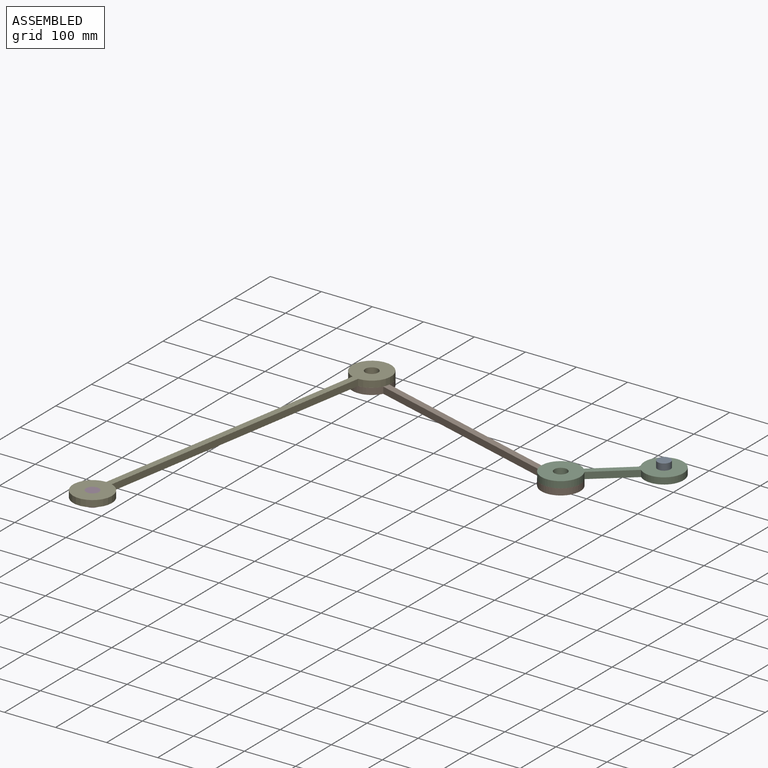
[diagram: assembled view]
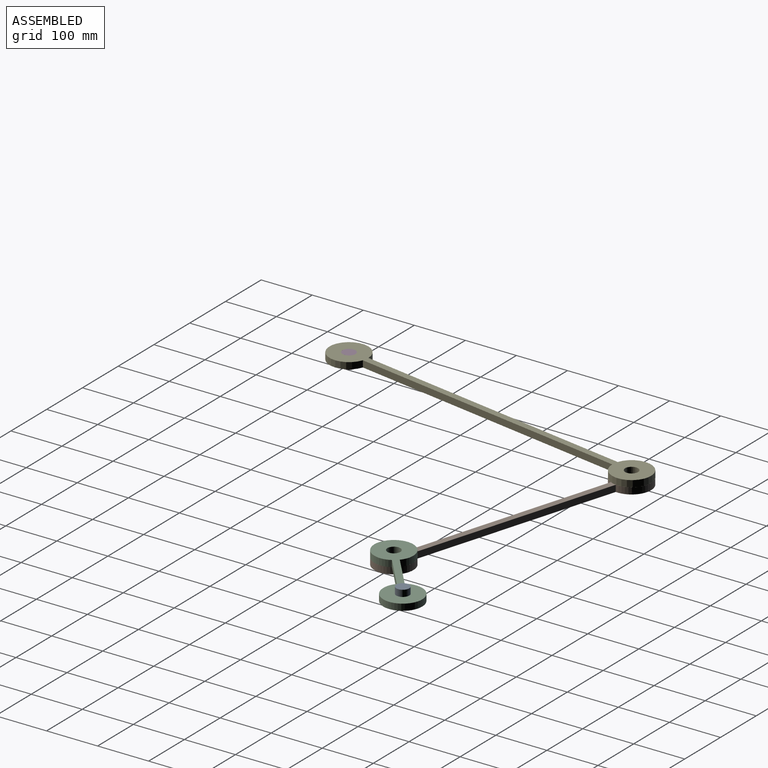
[diagram: assembled view, second angle]
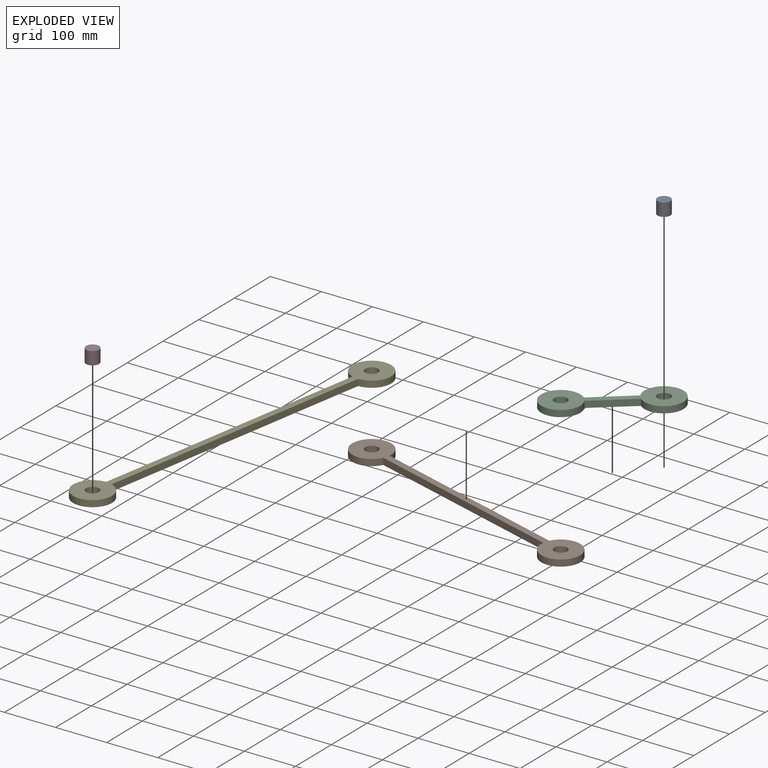
[diagram: exploded view]
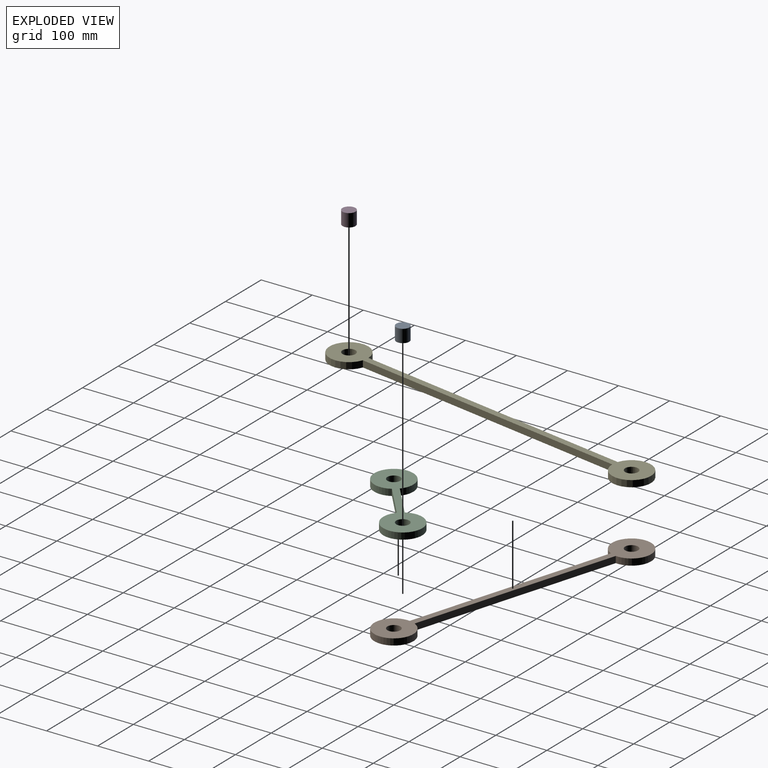
[diagram: exploded view, second angle]
ASSEMBLY  parts=5 mates=4
PART A: 3 faces, bbox 25.4x25.4x25.4 mm
  f0: cylinder r=12.7mm len=25.4mm, axis (0,0,-1), area 2026.8mm2, adj f1,f2
  f1: plane 25.4x25.4mm, normal (0,0,1), area 506.7mm2, adj f0
  f2: plane 25.4x25.4mm, normal (0,0,-1), area 506.7mm2, adj f0
PART B: 8 faces, bbox 536.6x235.9x12.7 mm
  f0: cylinder r=38.1mm len=76.2mm, axis (0,0,1), area 2878.2mm2, adj f1,f3,f6,f7
  f1: plane 389.47x135.11mm, normal (-0.33,-0.94,0), area 5235.4mm2, adj f0,f2,f6,f7
  f2: cylinder r=38.1mm len=76.2mm, axis (0,0,1), area 2878.2mm2, adj f1,f3,f6,f7
  f3: plane 389.47x135.11mm, normal (0.33,0.94,0), area 5235.4mm2, adj f0,f2,f6,f7
  f4: cylinder r=12.7mm len=25.4mm, axis (0,0,1), area 1013.4mm2, adj f6,f7
  f5: cylinder r=12.7mm len=25.4mm, axis (0,0,1), area 1013.4mm2, adj f6,f7
  f6: plane 536.65x235.93mm, normal (0,0,-1), area 13333.7mm2, adj f0,f1,f2,f3,f4,f5
  f7: plane 536.65x235.93mm, normal (0,0,1), area 13333.7mm2, adj f0,f1,f2,f3,f4,f5
PART C: 8 faces, bbox 76.2x242.5x12.7 mm
  f0: cylinder r=38.1mm len=76.2mm, axis (0,0,-1), area 2878.2mm2, adj f1,f3,f6,f7
  f1: plane 91.12x12.7mm, normal (-1,0,0), area 1157.2mm2, adj f0,f2,f6,f7
  f2: cylinder r=38.1mm len=76.2mm, axis (0,0,-1), area 2878.2mm2, adj f1,f3,f6,f7
  f3: plane 91.12x12.7mm, normal (1,0,0), area 1157.2mm2, adj f0,f2,f6,f7
  f4: cylinder r=12.7mm len=25.4mm, axis (0,0,-1), area 1013.4mm2, adj f6,f7
  f5: cylinder r=12.7mm len=25.4mm, axis (0,0,-1), area 1013.4mm2, adj f6,f7
  f6: plane 242.45x76.2mm, normal (0,0,1), area 9255.5mm2, adj f0,f1,f2,f3,f4,f5
  f7: plane 242.45x76.2mm, normal (0,0,-1), area 9255.5mm2, adj f0,f1,f2,f3,f4,f5
PART D: 3 faces, bbox 25.4x25.4x25.4 mm
  f0: cylinder r=12.7mm len=25.4mm, axis (0,0,-1), area 2026.8mm2, adj f1,f2
  f1: plane 25.4x25.4mm, normal (0,0,1), area 506.7mm2, adj f0
  f2: plane 25.4x25.4mm, normal (0,0,-1), area 506.7mm2, adj f0
PART E: 8 faces, bbox 317.3x666.3x12.7 mm
  f0: cylinder r=38.1mm len=76.2mm, axis (0,0,-1), area 2878.2mm2, adj f1,f3,f6,f7
  f1: plane 520.55x212.72mm, normal (-0.93,0.38,0), area 7141.6mm2, adj f0,f2,f6,f7
  f2: cylinder r=38.1mm len=76.2mm, axis (0,0,-1), area 2878.2mm2, adj f1,f3,f6,f7
  f3: plane 520.55x212.72mm, normal (0.93,-0.38,0), area 7141.6mm2, adj f0,f2,f6,f7
  f4: cylinder r=12.7mm len=25.4mm, axis (0,0,-1), area 1013.4mm2, adj f6,f7
  f5: cylinder r=12.7mm len=25.4mm, axis (0,0,-1), area 1013.4mm2, adj f6,f7
  f6: plane 666.3x317.34mm, normal (0,0,1), area 15239.9mm2, adj f0,f1,f2,f3,f4,f5
  f7: plane 666.3x317.34mm, normal (0,0,-1), area 15239.9mm2, adj f0,f1,f2,f3,f4,f5
PLACE A t=(-60.97,-91.18,15.37)mm fixed
PLACE B rot(axis=(0,0,1),2.6deg) t=(-188.44,-31.67,15.37)mm
PLACE C rot(axis=(0,0,-1),50.1deg) t=(-188.44,-31.67,15.37)mm
PLACE D t=(-60.97,-91.18,15.37)mm fixed
PLACE E rot(axis=(0,0,1),12.6deg) t=(-171.51,51.25,15.37)mm
MATE revolute E.f0 <-> B.f0  axis (0,0,-1) through (-655.69,106.9,15.37)mm
MATE revolute A.f0 <-> C.f0  axis (0,0,-1) through (-60.97,75.07,15.37)mm
MATE revolute B.f2 <-> C.f2  axis (0,0,1) through (-188.44,-31.67,15.37)mm
MATE revolute D.f0 <-> E.f2  axis (0,0,1) through (-762.56,-521.55,28.07)mm
